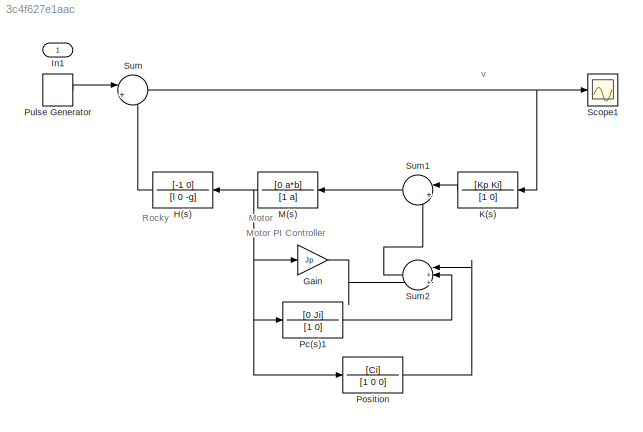
MODEL slx_3c4f627e1aac
KIND model
CONFIG AbsTol = auto
CONFIG EnableMultiTasking = off
CONFIG FixedStep = auto
CONFIG MaxStep = auto
CONFIG MinStep = auto
CONFIG RelTol = 1e-3
CONFIG SampleTimeConstraint = Unconstrained
CONFIG SolverName = VariableStepAuto
CONFIG StartTime = 0.0
CONFIG StopTime = 10.0
BLOCK [Gain] Gain
  Gain = Jp
BLOCK [TransferFcn] H(s)
  Denominator = [l 0 -g]
  NameLocation = top
  Numerator = [-1 0]
BLOCK [Inport] In1
BLOCK [TransferFcn] K(s)
  Denominator = [1 0]
  NameLocation = top
  Numerator = [Kp Ki]
BLOCK [TransferFcn] M(s)
  Denominator = [1 a]
  NameLocation = top
  Numerator = [0 a*b]
BLOCK [TransferFcn] Pc(s)1
  Denominator = [1 0]
  Numerator = [0 Ji]
BLOCK [TransferFcn] Position
  Denominator = [1 0 0]
  Numerator = [Ci]
BLOCK [DiscretePulseGenerator] Pulse Generator
  Period = 10
  PhaseDelay = .5
  Ports = [0, 1]
  PulseType = Time based
  PulseWidth = 0.1
BLOCK [Scope] Scope1
  Floating = off
  NumInputPorts = 1
  Ports = [1]
  ScopeSpecificationString = Simulink.scopes.TimeScopeBlockCfg('CurrentConfiguration', extmgr.ConfigurationSet(extmgr.Configuration('Core','General UI',true),extmgr.Configuration('Core','Source UI',true),extmgr.Configuration('Sources','WiredSimulink',true),extmgr.Configuration('Visuals','Time Domain',true,'SerializedDisplays',{struct('MinYLimReal','-0.21737','MaxYLimReal','1.13526','YLabelReal','','MinYLimMag','0.00000','MaxY...<+1354ch>
BLOCK [Sum] Sum
  Inputs = |++
  Ports = [2, 1]
BLOCK [Sum] Sum1
  Inputs = |+-
  NameLocation = top
  Ports = [2, 1]
BLOCK [Sum] Sum2
  Inputs = |+++
  NameLocation = top
  Ports = [3, 1]
ANNOTATION (root): Motor PI Controller
ANNOTATION (root): Motor
ANNOTATION (root): Rocky
ANNOTATION (root): v
LINE Gain:1 -> Sum2:3
LINE H(s):1 -> Sum:2
LINE K(s):1 -> Sum1:1
NET M(s):1 -> Gain:1, H(s):1, Pc(s)1:1, Position:1
LINE Pc(s)1:1 -> Sum2:2
LINE Position:1 -> Sum2:1
LINE Pulse Generator:1 -> Sum:1
LINE Sum1:1 -> M(s):1
LINE Sum2:1 -> Sum1:2
NET Sum:1 -> K(s):1, Scope1:1
note: NET lines group one-source signal fan-out (src -> all destinations, sorted); 1:1 wires keep LINE
